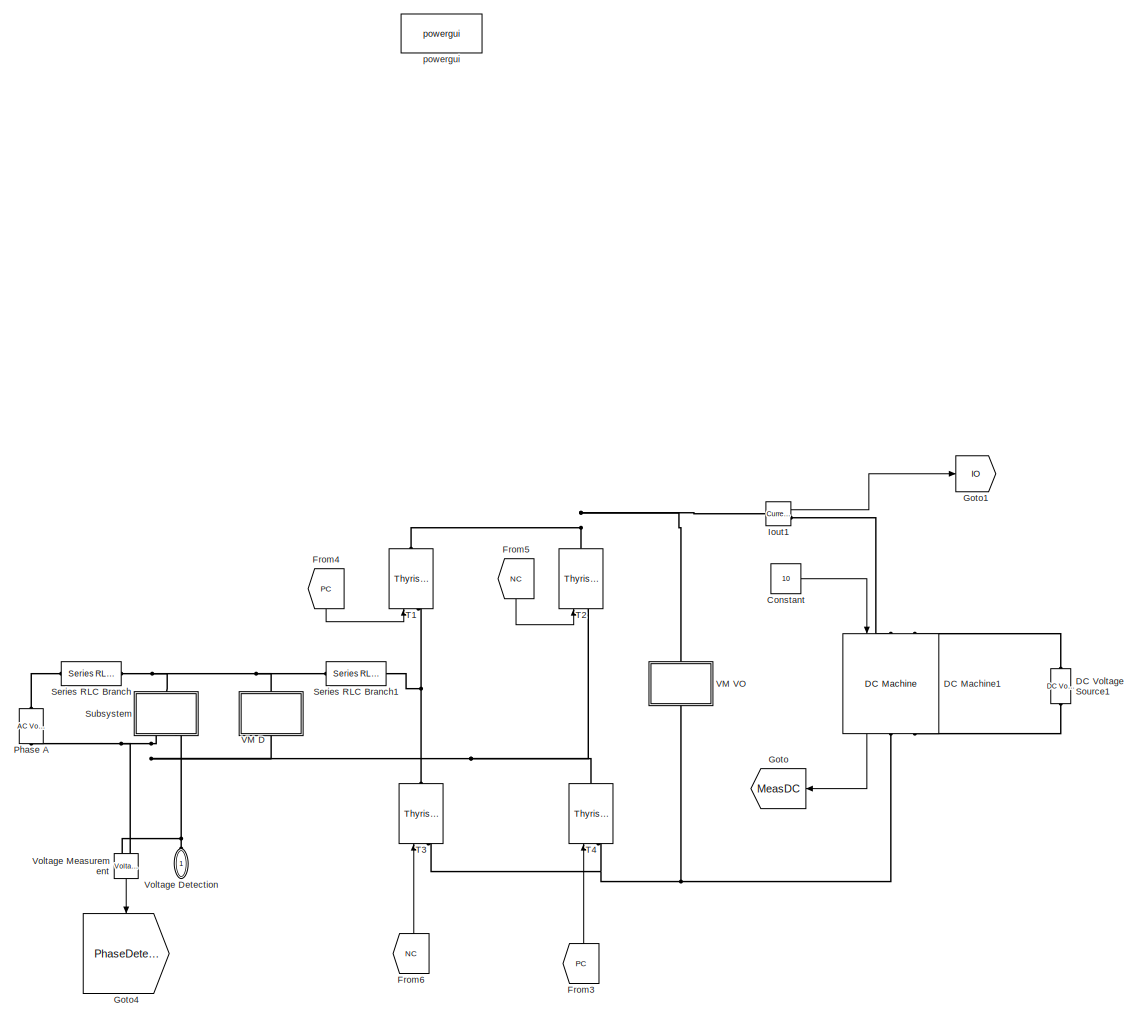
[diagram: root canvas - part 1/3, center side, full height]
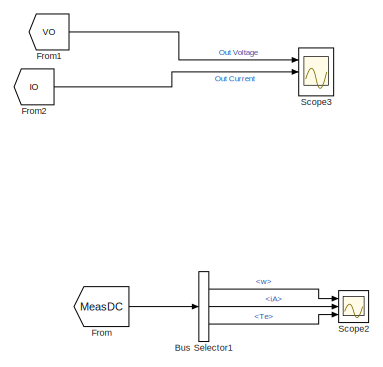
[diagram: root canvas - part 2/3, middle right region]
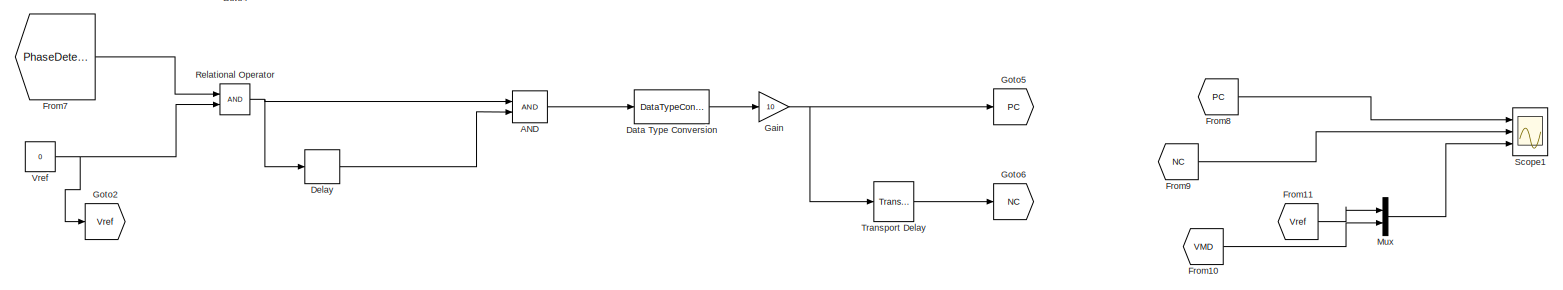
[diagram: root canvas - part 3/3, full width, bottom band]
MODEL slx_2596636ffd46
KIND model
CONFIG AbsTol = auto
CONFIG EnableMultiTasking = off
CONFIG FixedStep = auto
CONFIG MaxStep = auto
CONFIG MinStep = auto
CONFIG RelTol = 1e-3
CONFIG SampleTimeConstraint = Unconstrained
CONFIG Solver = FixedStepDiscrete
CONFIG SolverName = FixedStepDiscrete
CONFIG StartTime = 0.0
CONFIG StopTime = 10
BLOCK [Logic] AND
  AllPortsSameDT = off
  IconShape = distinctive
  OutDataTypeStr = boolean
  Ports = [2, 1]
BLOCK [BusSelector] Bus Selector1
  OutputAsBus = off
  OutputSignals = w,iA,Te
  Ports = [1, 3]
BLOCK [Constant] Constant
  Value = 10
BLOCK [Reference] DC Machine1  REF=powerlib/Machines/DC Machine
  Ports = [1, 1, 0, 0, 0, 2, 2]
  SourceBlock = powerlib/Machines/DC Machine
  SourceProductBaseCode = PS
  SourceProductName = Simscape Power Systems
  SourceType = DC machine
BLOCK [Reference] DC Voltage Source1  REF=powerlib/Electrical
Sources/DC Voltage Source
  Ports = [0, 0, 0, 0, 0, 1, 1]
  SourceBlock = powerlib/Electrical\nSources/DC Voltage Source
  SourceProductBaseCode = PS
  SourceProductName = Simscape Power Systems
  SourceType = DC Voltage Source
BLOCK [DataTypeConversion] Data Type Conversion
  OutDataTypeStr = double
  RndMeth = Floor
  SaturateOnIntegerOverflow = off
BLOCK [Delay] Delay
  DelayLength = 10
  InputPortMap = u0
  Ports = [1, 1]
BLOCK [From] From
  GotoTag = MeasDC
BLOCK [From] From1
  GotoTag = VO
  TagVisibility = global
BLOCK [From] From10
  GotoTag = VMD
  TagVisibility = global
BLOCK [From] From11
  GotoTag = Vref
  TagVisibility = global
BLOCK [From] From2
  GotoTag = IO
  TagVisibility = global
BLOCK [From] From3
  GotoTag = PC
  TagVisibility = global
BLOCK [From] From4
  GotoTag = PC
  TagVisibility = global
BLOCK [From] From5
  GotoTag = NC
  TagVisibility = global
BLOCK [From] From6
  GotoTag = NC
  TagVisibility = global
BLOCK [From] From7
  GotoTag = PhaseDetector
BLOCK [From] From8
  GotoTag = PC
  TagVisibility = global
BLOCK [From] From9
  GotoTag = NC
  TagVisibility = global
BLOCK [Gain] Gain
  Gain = 10
  OutDataTypeStr = Inherit: Inherit via internal rule
  ParamDataTypeStr = Inherit: Inherit via internal rule
  SaturateOnIntegerOverflow = off
BLOCK [Goto] Goto
  GotoTag = MeasDC
BLOCK [Goto] Goto1
  GotoTag = IO
  TagVisibility = global
BLOCK [Goto] Goto2
  GotoTag = Vref
  TagVisibility = global
BLOCK [Goto] Goto4
  GotoTag = PhaseDetector
BLOCK [Goto] Goto5
  GotoTag = PC
  TagVisibility = global
BLOCK [Goto] Goto6
  GotoTag = NC
  TagVisibility = global
BLOCK [Reference] Iout1  REF=powerlib/Measurements/Current Measurement
  Ports = [0, 1, 0, 0, 0, 1, 1]
  SourceBlock = powerlib/Measurements/Current Measurement
  SourceProductBaseCode = PS
  SourceProductName = Simscape Power Systems
  SourceType = Current Measurement
  UserDataPersistent = on
BLOCK [Mux] Mux
  DisplayOption = bar
  Inputs = 2
  Ports = [2, 1]
BLOCK [Reference] Phase A  REF=powerlib/Electrical
Sources/AC Voltage Source
  Ports = [0, 0, 0, 0, 0, 1, 1]
  SourceBlock = powerlib/Electrical\nSources/AC Voltage Source
  SourceProductBaseCode = PS
  SourceProductName = Simscape Power Systems
  SourceType = AC Voltage Source
BLOCK [RelationalOperator] Relational Operator
  InputSameDT = off
  OutDataTypeStr = boolean
  Ports = [2, 1]
  RndMeth = Simplest
BLOCK [Scope] Scope1
  Floating = off
  NumInputPorts = 3
  Ports = [3]
  ScopeSpecificationString = Simulink.scopes.TimeScopeBlockCfg('CurrentConfiguration', extmgr.ConfigurationSet(extmgr.Configuration('Core','General UI',true,'FigureColor',[1 1 1]),extmgr.Configuration('Core','Source UI',true),extmgr.Configuration('Sources','WiredSimulink',true,'DataLoggingVariableName','ScopeData1'),extmgr.Configuration('Visuals','Time Domain',true,'SerializedDisplays',{struct('MinYLimReal','-1.25','MaxYLimRe...<+3227ch>
BLOCK [Scope] Scope2
  Floating = off
  NumInputPorts = 3
  Ports = [3]
  ScopeSpecificationString = Simulink.scopes.TimeScopeBlockCfg('CurrentConfiguration', extmgr.ConfigurationSet(extmgr.Configuration('Core','General UI',true,'FigureColor',[1 1 1]),extmgr.Configuration('Core','Source UI',true),extmgr.Configuration('Sources','WiredSimulink',true,'DataLoggingVariableName','ScopeData2'),extmgr.Configuration('Visuals','Time Domain',true,'SerializedDisplays',{struct('MinYLimReal','-27.81951','MaxYL...<+3223ch>
BLOCK [Scope] Scope3
  Floating = off
  NumInputPorts = 3
  Ports = [3]
  ScopeSpecificationString = Simulink.scopes.TimeScopeBlockCfg('CurrentConfiguration', extmgr.ConfigurationSet(extmgr.Configuration('Core','General UI',true,'FigureColor',[1 1 1]),extmgr.Configuration('Core','Source UI',true),extmgr.Configuration('Sources','WiredSimulink',true,'DataLoggingVariableName','ScopeData3'),extmgr.Configuration('Visuals','Time Domain',true,'SerializedDisplays',{struct('MinYLimReal','-62.68242','MaxYL...<+3265ch>
BLOCK [Reference] Series RLC Branch  REF=powerlib/Elements/Series RLC Branch
  Ports = [0, 0, 0, 0, 0, 1, 1]
  SourceBlock = powerlib/Elements/Series RLC Branch
  SourceProductBaseCode = PS
  SourceProductName = Simscape Power Systems
  SourceType = Series RLC Branch
BLOCK [Reference] Series RLC Branch1  REF=powerlib/Elements/Series RLC Branch
  Ports = [0, 0, 0, 0, 0, 1, 1]
  SourceBlock = powerlib/Elements/Series RLC Branch
  SourceProductBaseCode = PS
  SourceProductName = Simscape Power Systems
  SourceType = Series RLC Branch
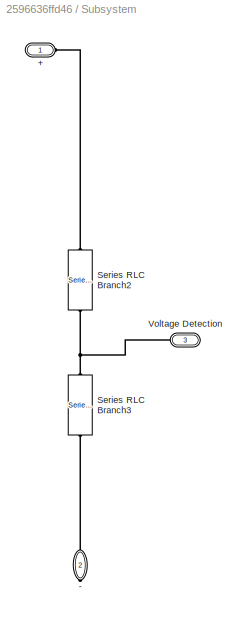
BLOCK [SubSystem] Subsystem
  Ports = [0, 0, 0, 0, 0, 1, 2]
  RequestExecContextInheritance = off
BLOCK [PMIOPort] Subsystem/+
  Side = Left
BLOCK [PMIOPort] Subsystem/-
  Port = 2
  Side = Right
BLOCK [Reference] Subsystem/Series RLC Branch2  REF=powerlib/Elements/Series RLC Branch
  Ports = [0, 0, 0, 0, 0, 1, 1]
  SourceBlock = powerlib/Elements/Series RLC Branch
  SourceProductBaseCode = PS
  SourceProductName = Simscape Power Systems
  SourceType = Series RLC Branch
BLOCK [Reference] Subsystem/Series RLC Branch3  REF=powerlib/Elements/Series RLC Branch
  Ports = [0, 0, 0, 0, 0, 1, 1]
  SourceBlock = powerlib/Elements/Series RLC Branch
  SourceProductBaseCode = PS
  SourceProductName = Simscape Power Systems
  SourceType = Series RLC Branch
BLOCK [PMIOPort] Subsystem/Voltage Detection
  Port = 3
  Side = Right
BLOCK [Reference] T1  REF=powerlib/Power
Electronics/Thyristor
  Ports = [1, 0, 0, 0, 0, 1, 1]
  SourceBlock = powerlib/Power\nElectronics/Thyristor
  SourceProductBaseCode = PS
  SourceProductName = Simscape Power Systems
  SourceType = Thyristor
BLOCK [Reference] T2  REF=powerlib/Power
Electronics/Thyristor
  Ports = [1, 0, 0, 0, 0, 1, 1]
  SourceBlock = powerlib/Power\nElectronics/Thyristor
  SourceProductBaseCode = PS
  SourceProductName = Simscape Power Systems
  SourceType = Thyristor
BLOCK [Reference] T3  REF=powerlib/Power
Electronics/Thyristor
  Ports = [1, 0, 0, 0, 0, 1, 1]
  SourceBlock = powerlib/Power\nElectronics/Thyristor
  SourceProductBaseCode = PS
  SourceProductName = Simscape Power Systems
  SourceType = Thyristor
BLOCK [Reference] T4  REF=powerlib/Power
Electronics/Thyristor
  Ports = [1, 0, 0, 0, 0, 1, 1]
  SourceBlock = powerlib/Power\nElectronics/Thyristor
  SourceProductBaseCode = PS
  SourceProductName = Simscape Power Systems
  SourceType = Thyristor
BLOCK [TransportDelay] Transport Delay
  DelayTime = 0.01
  Ports = [1, 1]
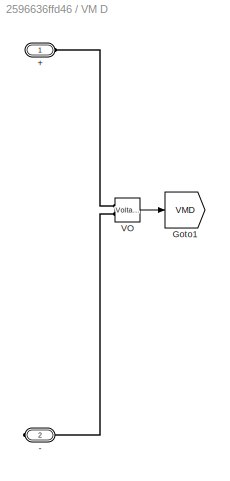
BLOCK [SubSystem] VM D
  Ports = [0, 0, 0, 0, 0, 1, 1]
  RequestExecContextInheritance = off
BLOCK [PMIOPort] VM D/+
  Side = Left
BLOCK [PMIOPort] VM D/-
  Port = 2
  Side = Right
BLOCK [Goto] VM D/Goto1
  GotoTag = VMD
  TagVisibility = global
BLOCK [Reference] VM D/VO  REF=powerlib/Measurements/Voltage Measurement
  Ports = [0, 1, 0, 0, 0, 2]
  SourceBlock = powerlib/Measurements/Voltage Measurement
  SourceProductBaseCode = PS
  SourceProductName = Simscape Power Systems
  SourceType = Voltage Measurement
  UserDataPersistent = on
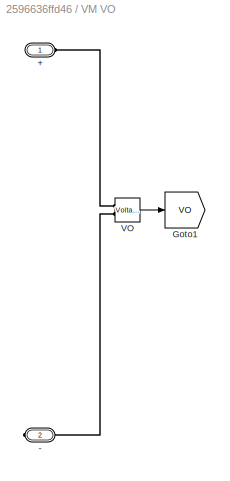
BLOCK [SubSystem] VM VO
  Ports = [0, 0, 0, 0, 0, 1, 1]
  RequestExecContextInheritance = off
BLOCK [PMIOPort] VM VO/+
  Side = Left
BLOCK [PMIOPort] VM VO/-
  Port = 2
  Side = Right
BLOCK [Goto] VM VO/Goto1
  GotoTag = VO
  TagVisibility = global
BLOCK [Reference] VM VO/VO  REF=powerlib/Measurements/Voltage Measurement
  Ports = [0, 1, 0, 0, 0, 2]
  SourceBlock = powerlib/Measurements/Voltage Measurement
  SourceProductBaseCode = PS
  SourceProductName = Simscape Power Systems
  SourceType = Voltage Measurement
  UserDataPersistent = on
BLOCK [PMIOPort] Voltage Detection
  Side = Left
BLOCK [Reference] Voltage Measurement  REF=powerlib/Measurements/Voltage Measurement
  Ports = [0, 1, 0, 0, 0, 2]
  SourceBlock = powerlib/Measurements/Voltage Measurement
  SourceProductBaseCode = PS
  SourceProductName = Simscape Power Systems
  SourceType = Voltage Measurement
  UserDataPersistent = on
BLOCK [Constant] Vref
  Value = 0
BLOCK [Reference] powergui  REF=powerlib/powergui
  Ports = []
  Priority = 1
  SourceBlock = powerlib/powergui
  SourceProductBaseCode = PS
  SourceProductName = Simscape Power Systems
  SourceType = PSB option menu block
LINE AND:1 -> Data Type Conversion:1
LINE Bus Selector1:1 -> Scope2:1
LINE Bus Selector1:2 -> Scope2:2
LINE Bus Selector1:3 -> Scope2:3
LINE Constant:1 -> DC Machine1:1
LINE DC Machine1:1 -> Goto:1
LINE Data Type Conversion:1 -> Gain:1
LINE Delay:1 -> AND:2
LINE From10:1 -> Mux:2
LINE From11:1 -> Mux:1
LINE From1:1 -> Scope3:1
LINE From2:1 -> Scope3:2
LINE From3:1 -> T4:1
LINE From4:1 -> T1:1
LINE From5:1 -> T2:1
LINE From6:1 -> T3:1
LINE From7:1 -> Relational Operator:1
LINE From8:1 -> Scope1:1
LINE From9:1 -> Scope1:2
LINE From:1 -> Bus Selector1:1
NET Gain:1 -> Goto5:1, Transport Delay:1
LINE Iout1:1 -> Goto1:1
LINE Mux:1 -> Scope1:3
NET Relational Operator:1 -> AND:1, Delay:1
LINE Transport Delay:1 -> Goto6:1
LINE VM D/VO:1 -> VM D/Goto1:1
LINE VM VO/VO:1 -> VM VO/Goto1:1
LINE Voltage Measurement:1 -> Goto4:1
NET Vref:1 -> Goto2:1, Relational Operator:2
PLINE DC Machine1:LConn1 -- Iout1:RConn1
PLINE DC Machine1:LConn2 -- DC Voltage Source1:RConn1
PNET net1: DC Machine1:RConn1 -- T3:LConn1 -- T4:LConn1 -- VM VO:RConn1
PLINE DC Machine1:RConn2 -- DC Voltage Source1:LConn1
PNET net2: Iout1:LConn1 -- T1:RConn1 -- T2:RConn1 -- VM VO:LConn1
PNET net3: Phase A:LConn1 -- Subsystem:RConn1 -- T2:LConn1 -- T4:RConn1 -- VM D:RConn1 -- Voltage Measurement:LConn2
PLINE Phase A:RConn1 -- Series RLC Branch:LConn1
PNET net4: Series RLC Branch1:LConn1 -- Series RLC Branch:RConn1 -- Subsystem:LConn1 -- VM D:LConn1
PNET net5: Series RLC Branch1:RConn1 -- T1:LConn1 -- T3:RConn1
PLINE Subsystem/+:RConn1 -- Subsystem/Series RLC Branch2:LConn1
PLINE Subsystem/-:RConn1 -- Subsystem/Series RLC Branch3:RConn1
PNET net6: Subsystem/Series RLC Branch2:RConn1 -- Subsystem/Series RLC Branch3:LConn1 -- Subsystem/Voltage Detection:RConn1
PNET net7: Subsystem:RConn2 -- Voltage Detection:RConn1 -- Voltage Measurement:LConn1
PLINE VM D/+:RConn1 -- VM D/VO:LConn1
PLINE VM D/-:RConn1 -- VM D/VO:LConn2
PLINE VM VO/+:RConn1 -- VM VO/VO:LConn1
PLINE VM VO/-:RConn1 -- VM VO/VO:LConn2
note: NET lines group one-source signal fan-out (src -> all destinations, sorted); 1:1 wires keep LINE; PNET lines group multi-terminal physical nets as a canonical sorted terminal list (undirected conserving connections); 2-terminal nets keep the pairwise PLINE form
